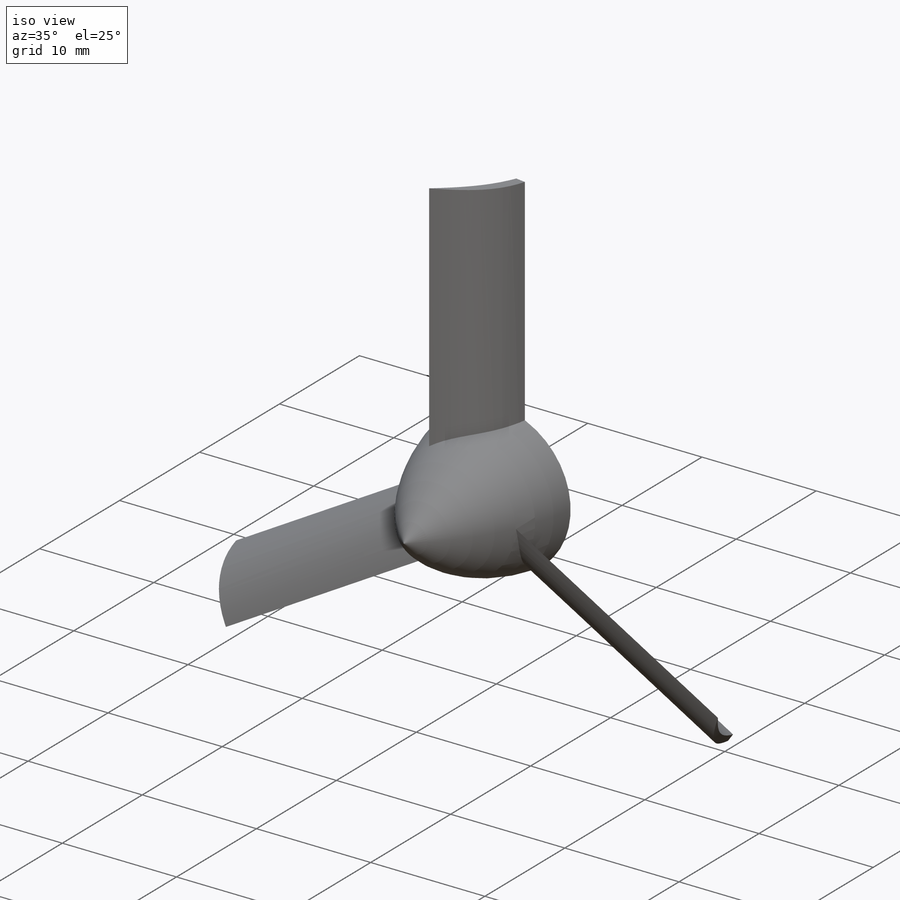
[diagram: iso view]
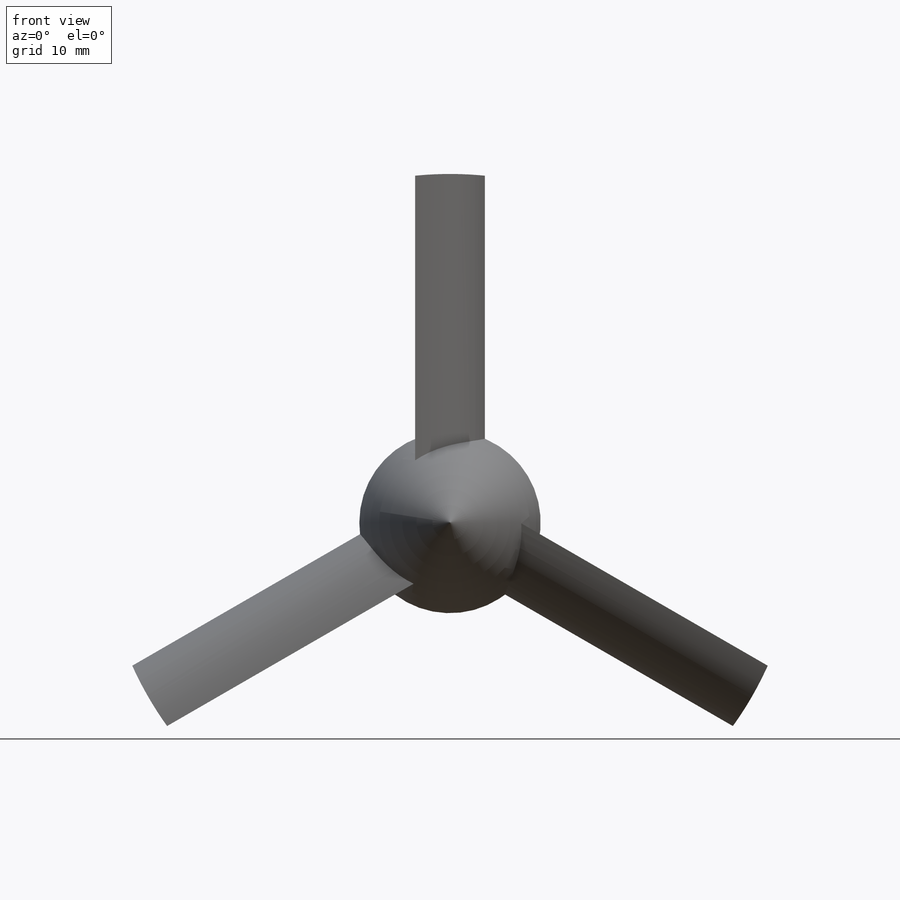
[diagram: front view]
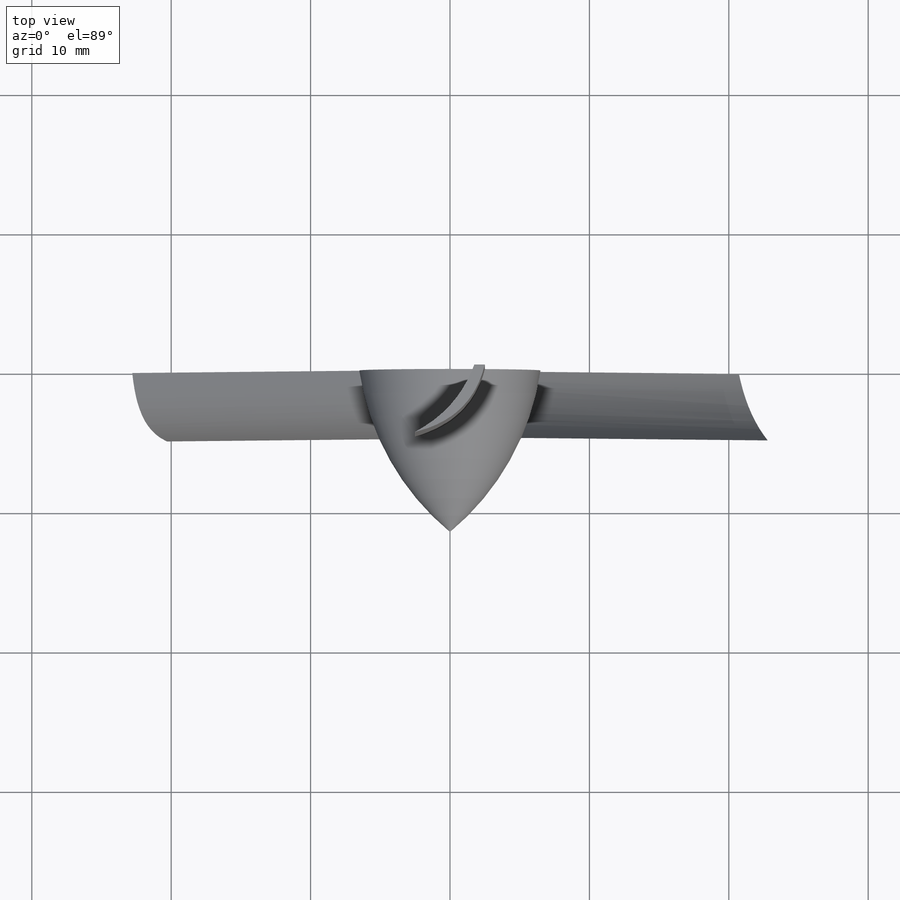
[diagram: top view]
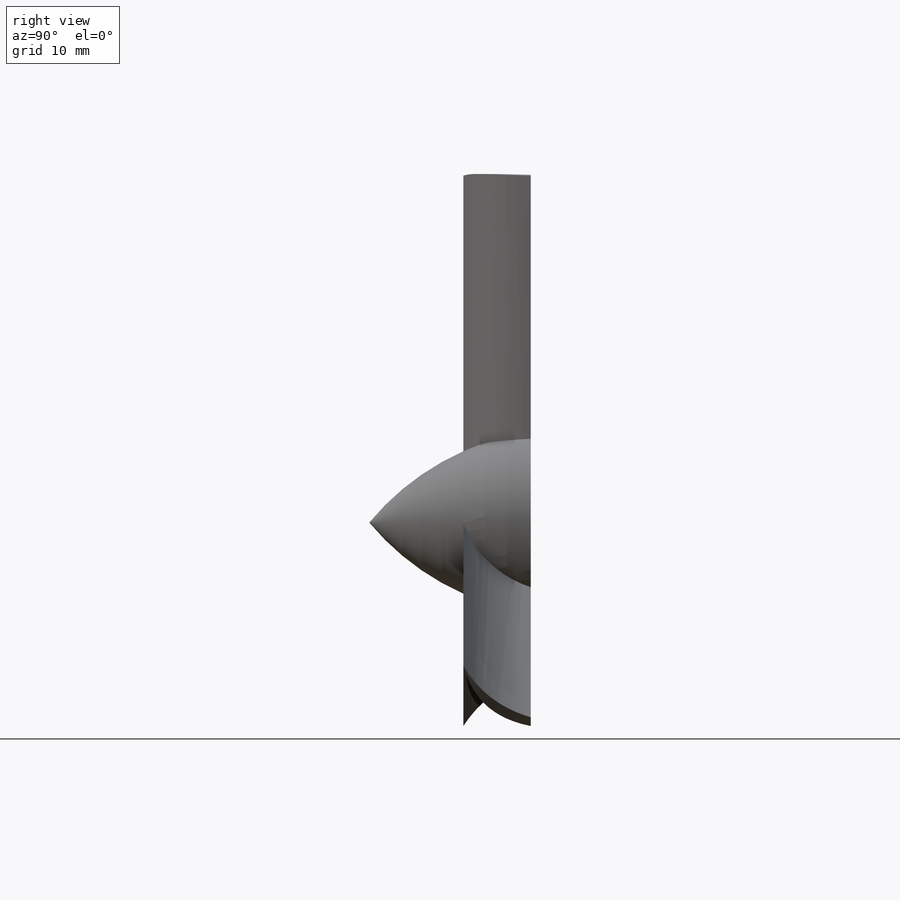
[diagram: right view]
SOLIDWORKS PART (.sldprt)
format: sldprt  version: not decoded by parser v0  size: 253,440 bytes
history: native  units: mm
features: sketch x8, extrude x4, plane x2, cut_extrude x2, material x1, revolve x1 (+16 scaffold rows collapsed)
feature tree (34):
  scaffold x16  (default folders/planes/origin — collapsed)
  material  "PVC Rigid"
  sketch  "Sketch1"  dims[D2=18.0mm D1=6.0mm D3=0.5mm]
  revolve  "Revolve1"  Angle=360deg
  sketch  "Sketch2"  dims[D1=2.5mm D2=2.5mm]
  extrude  "Extrude1"  Depth=30mm
  sketch  "Sketch5"
  plane  "Plane1"
  plane  "Plane2"
  sketch  "Sketch6"  dims[D1=~4.835676mm D2=~4.241867mm D3=~1.196139mm D4=~2.261489mm D5=~2.632172mm D6=~0.49596mm D7=~0.758133mm D8=2.5mm]
  extrude  "Extrude2"  Depth=30mm
  sketch  "Sketch7"  dims[c1.D1=~4.835676mm c1.D2=~4.241867mm c1.D3=~1.196139mm c1.D4=~2.261489mm c1.D5=~2.632172mm c1.D6=~0.49596mm c1.D7=~0.758133mm c2.D1=~0.758133mm c2.D2=~1.254094mm c2.D3=~2.632172mm c2.D4=~1.954272mm c2.D5=~2.261489mm c2.D6=~4.241867mm c2.D7=~4.835676mm c2.D8=2.5mm]
  extrude  "Extrude3"  Depth=30mm
  sketch  "Sketch8"  dims[D1=50.0mm D2=70.0mm]
  cut_extrude  "Extrude4"  Depth=30mm
  sketch  "Sketch9"
  cut_extrude  "Extrude5"  [1 undecoded]
  sketch  "Sketch10"  dims[D1=3.0mm D2=7.0mm]
  extrude  "Extrude6"  [1 undecoded]
decode coverage: 11 of 15 modeling features carry decoded parameters
note: ~ marks probable driven/reference dimensions
note: 2 parameter values undecoded
note: suppression state not decoded; provenance and decode notes live in map.json
